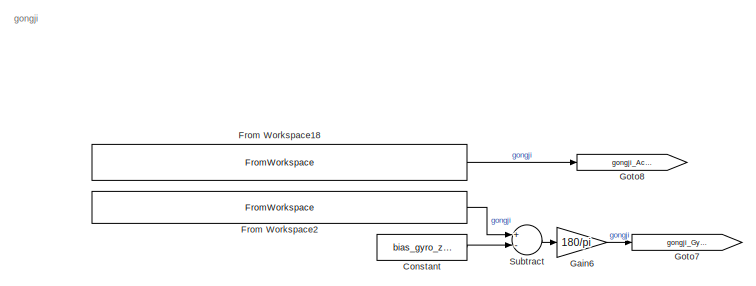
[diagram: root canvas - part 1/3, top right region]
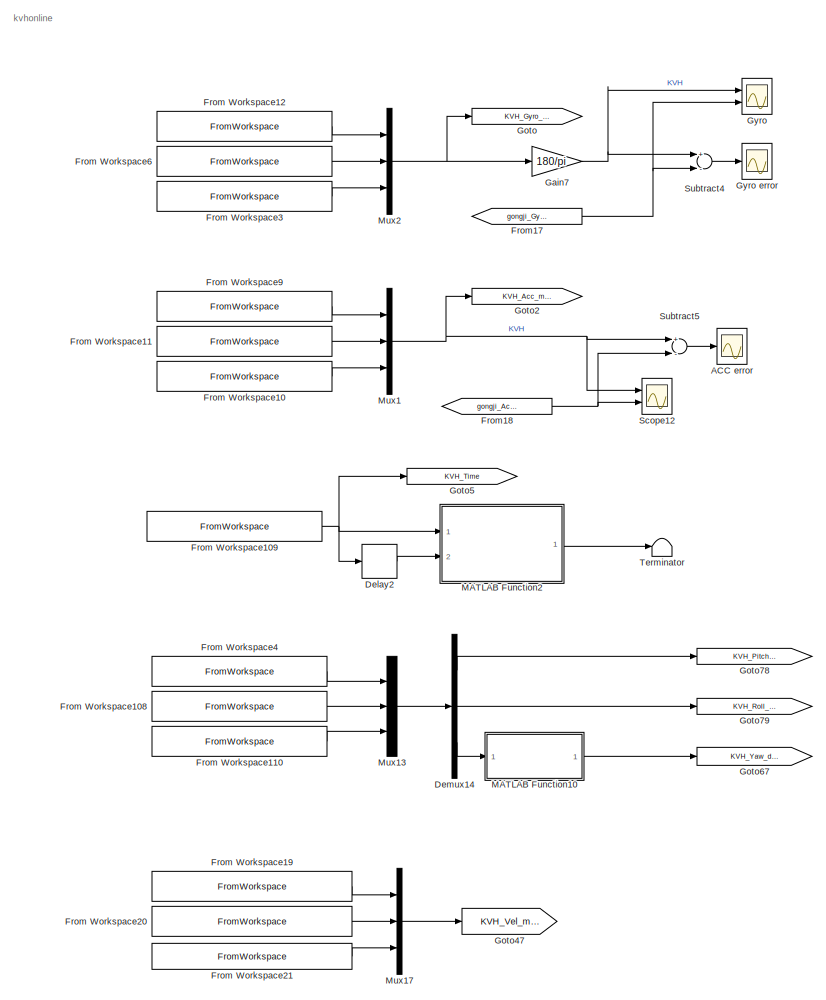
[diagram: root canvas - part 2/3, middle left region]
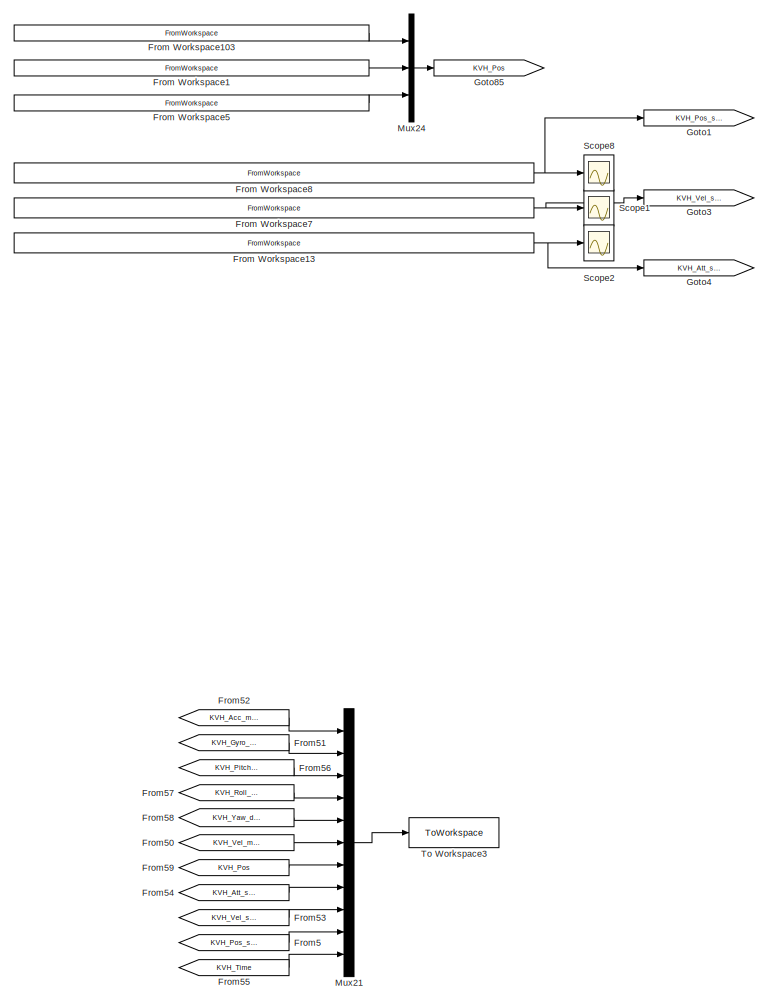
[diagram: root canvas - part 3/3, bottom left region]
MODEL slx_8881a39156ae
KIND model
CONFIG AbsTol = auto
CONFIG EnableMultiTasking = off
CONFIG FixedStep = 0.01
CONFIG MaxStep = 0.01
CONFIG MinStep = auto
CONFIG RelTol = 1e-3
CONFIG SampleTimeConstraint = Unconstrained
CONFIG Solver = ode3
CONFIG SolverName = ode3
CONFIG StartTime = 0.0
CONFIG StopTime = 6000
BLOCK [Scope] ACC error
  Floating = off
  NumInputPorts = 1
  Ports = [1]
  ScopeSpecificationString = Simulink.scopes.TimeScopeBlockCfg('CurrentConfiguration', extmgr.ConfigurationSet(extmgr.Configuration('Core','General UI',true),extmgr.Configuration('Core','Source UI',true),extmgr.Configuration('Sources','WiredSimulink',true,'DataLoggingVariableName','ScopeData2','DataLoggingSaveFormat','StructureWithTime','DataLoggingDecimation','1','DataLoggingDecimateData',true),extmgr.Configuration('Visuals'...<+1628ch>
BLOCK [Constant] Constant
  Value = bias_gyro_z_gongji
BLOCK [Delay] Delay2
  DelayLength = 1
  InitialCondition = 0
  InputPortMap = u0
  Ports = [1, 1]
BLOCK [Demux] Demux14
  DisplayOption = bar
  Outputs = 3
  Ports = [1, 3]
BLOCK [FromWorkspace] From Workspace1
  OutputAfterFinalValue = Holding final value
  VariableName = [T_INSPVAXA,KVH1750.INSPVA.Longitude_Fusion*deg2rad(1)]
  ZeroCross = on
BLOCK [FromWorkspace] From Workspace10
  Interpolate = off
  OutputAfterFinalValue = Holding final value
  VariableName = [T_RAWIMU,KVH1750.RAWIMU.Z_Acc]
  ZeroCross = on
BLOCK [FromWorkspace] From Workspace103
  OutputAfterFinalValue = Holding final value
  VariableName = [T_INSPVAXA,KVH1750.INSPVA.Latitude_Fusion*deg2rad(1)]
  ZeroCross = on
BLOCK [FromWorkspace] From Workspace108
  Interpolate = off
  OutputAfterFinalValue = Holding final value
  VariableName = [T_INSPVAXA,KVH1750.INSPVA.Roll]
  ZeroCross = on
BLOCK [FromWorkspace] From Workspace109
  Interpolate = off
  OutputAfterFinalValue = Holding final value
  VariableName = [T_INSPVAXA,T_INSPVAXA]
  ZeroCross = on
BLOCK [FromWorkspace] From Workspace11
  Interpolate = off
  OutputAfterFinalValue = Holding final value
  VariableName = [T_RAWIMU,KVH1750.RAWIMU.Y_Acc]
  ZeroCross = on
BLOCK [FromWorkspace] From Workspace110
  Interpolate = off
  OutputAfterFinalValue = Holding final value
  VariableName = [T_INSPVAXA,KVH1750.INSPVA.Azimuth]
  ZeroCross = on
BLOCK [FromWorkspace] From Workspace12
  Interpolate = off
  OutputAfterFinalValue = Holding final value
  VariableName = [T_RAWIMU,KVH1750.RAWIMU.X_Gyro]
  ZeroCross = on
BLOCK [FromWorkspace] From Workspace13
  Interpolate = off
  OutputAfterFinalValue = Holding final value
  VariableName = [T_INSPVAXA,KVH1750.INSPVA.Pitch_sigma_Fusion,KVH1750.INSPVA.Roll_sigma_Fusion,KVH1750.INSPVA.Azimuth_sigma_Fusion]
  ZeroCross = on
BLOCK [FromWorkspace] From Workspace18
  Interpolate = off
  OutputAfterFinalValue = Holding final value
  VariableName = [Time,RawData_table.IMU_ACC_x,RawData_table.IMU_ACC_y,RawData_table.IMU_ACC_z]
  ZeroCross = on
BLOCK [FromWorkspace] From Workspace19
  Interpolate = off
  OutputAfterFinalValue = Holding final value
  VariableName = [T_INSPVAXA,KVH1750.INSPVA.Vel_E_Fusion]
  ZeroCross = on
BLOCK [FromWorkspace] From Workspace2
  Interpolate = off
  OutputAfterFinalValue = Holding final value
  VariableName = [Time,RawData_table.IMU_Gyro_x,RawData_table.IMU_Gyro_y,RawData_table.IMU_Gyro_z]
  ZeroCross = on
BLOCK [FromWorkspace] From Workspace20
  Interpolate = off
  OutputAfterFinalValue = Holding final value
  VariableName = [T_INSPVAXA,KVH1750.INSPVA.Vel_N_Fusion]
  ZeroCross = on
BLOCK [FromWorkspace] From Workspace21
  Interpolate = off
  OutputAfterFinalValue = Holding final value
  VariableName = [T_INSPVAXA,KVH1750.INSPVA.Vel_U_Fusion]
  ZeroCross = on
BLOCK [FromWorkspace] From Workspace3
  Interpolate = off
  OutputAfterFinalValue = Holding final value
  VariableName = [T_RAWIMU,KVH1750.RAWIMU.Z_Gyro]
  ZeroCross = on
BLOCK [FromWorkspace] From Workspace4
  Interpolate = off
  OutputAfterFinalValue = Holding final value
  VariableName = [T_INSPVAXA,KVH1750.INSPVA.Pitch]
  ZeroCross = on
BLOCK [FromWorkspace] From Workspace5
  OutputAfterFinalValue = Holding final value
  VariableName = [T_INSPVAXA,KVH1750.INSPVA.Height_Fusion]
  ZeroCross = on
BLOCK [FromWorkspace] From Workspace6
  Interpolate = off
  OutputAfterFinalValue = Holding final value
  VariableName = [T_RAWIMU,KVH1750.RAWIMU.Y_Gyro]
  ZeroCross = on
BLOCK [FromWorkspace] From Workspace7
  Interpolate = off
  OutputAfterFinalValue = Holding final value
  VariableName = [T_INSPVAXA,KVH1750.INSPVA.Vel_E_sigma_Fusion,KVH1750.INSPVA.Vel_N_sigma_Fusion,KVH1750.INSPVA.Vel_U_sigma_Fusion]
  ZeroCross = on
BLOCK [FromWorkspace] From Workspace8
  Interpolate = off
  OutputAfterFinalValue = Holding final value
  VariableName = [T_INSPVAXA,KVH1750.INSPVA.Lat_sigma_Fusion,KVH1750.INSPVA.Long_sigma_Fusion,KVH1750.INSPVA.Height_sigma_Fusion]
  ZeroCross = on
BLOCK [FromWorkspace] From Workspace9
  Interpolate = off
  OutputAfterFinalValue = Holding final value
  VariableName = [T_RAWIMU,KVH1750.RAWIMU.X_Acc]
  ZeroCross = on
BLOCK [From] From17
  GotoTag = gongji_Gyro_degps
BLOCK [From] From18
  GotoTag = gongji_Acc_mpss
BLOCK [From] From5
  GotoTag = KVH_Pos_sigma
BLOCK [From] From50
  GotoTag = KVH_Vel_mps
BLOCK [From] From51
  GotoTag = KVH_Gyro_rdps
BLOCK [From] From52
  GotoTag = KVH_Acc_mpss
BLOCK [From] From53
  GotoTag = KVH_Vel_sigma
BLOCK [From] From54
  GotoTag = KVH_Att_sigma
BLOCK [From] From55
  GotoTag = KVH_Time
BLOCK [From] From56
  GotoTag = KVH_Pitch_deg
BLOCK [From] From57
  GotoTag = KVH_Roll_deg
BLOCK [From] From58
  GotoTag = KVH_Yaw_deg
BLOCK [From] From59
  GotoTag = KVH_Pos
BLOCK [Gain] Gain6
  Gain = 180/pi
  OutDataTypeStr = Inherit: Inherit via internal rule
  ParamDataTypeStr = Inherit: Inherit via internal rule
  SaturateOnIntegerOverflow = off
BLOCK [Gain] Gain7
  Gain = 180/pi
  OutDataTypeStr = Inherit: Inherit via internal rule
  ParamDataTypeStr = Inherit: Inherit via internal rule
  SaturateOnIntegerOverflow = off
BLOCK [Goto] Goto
  GotoTag = KVH_Gyro_rdps
BLOCK [Goto] Goto1
  GotoTag = KVH_Pos_sigma
BLOCK [Goto] Goto2
  GotoTag = KVH_Acc_mpss
BLOCK [Goto] Goto3
  GotoTag = KVH_Vel_sigma
BLOCK [Goto] Goto4
  GotoTag = KVH_Att_sigma
BLOCK [Goto] Goto47
  GotoTag = KVH_Vel_mps
BLOCK [Goto] Goto5
  GotoTag = KVH_Time
BLOCK [Goto] Goto67
  GotoTag = KVH_Yaw_deg
BLOCK [Goto] Goto7
  GotoTag = gongji_Gyro_degps
BLOCK [Goto] Goto78
  GotoTag = KVH_Pitch_deg
BLOCK [Goto] Goto79
  GotoTag = KVH_Roll_deg
BLOCK [Goto] Goto8
  GotoTag = gongji_Acc_mpss
BLOCK [Goto] Goto85
  GotoTag = KVH_Pos
BLOCK [Scope] Gyro 
  Floating = off
  NumInputPorts = 2
  Ports = [2]
  ScopeSpecificationString = Simulink.scopes.TimeScopeBlockCfg('CurrentConfiguration', extmgr.ConfigurationSet(extmgr.Configuration('Core','General UI',true),extmgr.Configuration('Core','Source UI',true),extmgr.Configuration('Sources','WiredSimulink',true,'DataLoggingVariableName','ScopeData4','DataLoggingSaveFormat','StructureWithTime','DataLoggingDecimation','1','DataLoggingDecimateData',true),extmgr.Configuration('Visuals'...<+1718ch>
BLOCK [Scope] Gyro error
  Floating = off
  NumInputPorts = 1
  Ports = [1]
  ScopeSpecificationString = Simulink.scopes.TimeScopeBlockCfg('CurrentConfiguration', extmgr.ConfigurationSet(extmgr.Configuration('Core','General UI',true),extmgr.Configuration('Core','Source UI',true),extmgr.Configuration('Sources','WiredSimulink',true,'DataLoggingVariableName','ScopeData1','DataLoggingSaveFormat','StructureWithTime','DataLoggingDecimation','1','DataLoggingDecimateData',true),extmgr.Configuration('Visuals'...<+1672ch>
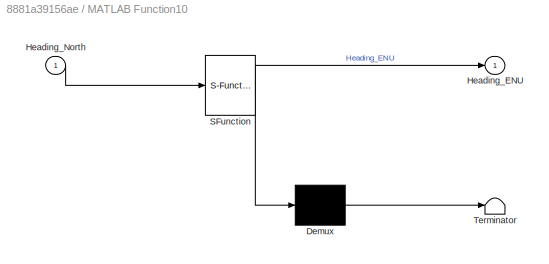
BLOCK [SubSystem] MATLAB Function10
  ErrorFcn = Stateflow.Translate.translate
  PermitHierarchicalResolution = ExplicitOnly
  Ports = [1, 1]
  RequestExecContextInheritance = off
  SFBlockType = MATLAB Function
  TreatAsAtomicUnit = on
BLOCK [Demux] MATLAB Function10/ Demux 
  Outputs = 1
  Ports = [1, 1]
BLOCK [S-Function] MATLAB Function10/ SFunction 
  EnableBusSupport = on
  FunctionName = sf_sfun
  PortCounts = [1 2]
  Ports = [1, 2]
  SFcnIsStateOwnerBlock = off
  SFunctionDeploymentMode = off
  Tag = Stateflow S-Function 124
BLOCK [Terminator] MATLAB Function10/ Terminator 
BLOCK [Outport] MATLAB Function10/Heading_ENU
  IconDisplay = Port number
BLOCK [Inport] MATLAB Function10/Heading_North
  IconDisplay = Port number
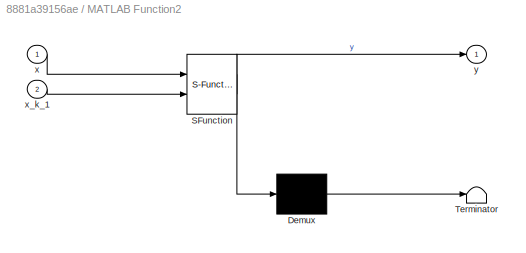
BLOCK [SubSystem] MATLAB Function2
  ErrorFcn = Stateflow.Translate.translate
  PermitHierarchicalResolution = ExplicitOnly
  Ports = [2, 1]
  RequestExecContextInheritance = off
  SFBlockType = MATLAB Function
  TreatAsAtomicUnit = on
BLOCK [Demux] MATLAB Function2/ Demux 
  Outputs = 1
  Ports = [1, 1]
BLOCK [S-Function] MATLAB Function2/ SFunction 
  EnableBusSupport = on
  FunctionName = sf_sfun
  PortCounts = [2 2]
  Ports = [2, 2]
  SFcnIsStateOwnerBlock = off
  SFunctionDeploymentMode = off
  Tag = Stateflow S-Function 57
BLOCK [Terminator] MATLAB Function2/ Terminator 
BLOCK [Inport] MATLAB Function2/x
  IconDisplay = Port number
BLOCK [Inport] MATLAB Function2/x_k_1
  IconDisplay = Port number
  Port = 2
BLOCK [Outport] MATLAB Function2/y
  IconDisplay = Port number
BLOCK [Mux] Mux1
  DisplayOption = bar
  Inputs = 3
  Ports = [3, 1]
BLOCK [Mux] Mux13
  DisplayOption = bar
  Inputs = 3
  Ports = [3, 1]
BLOCK [Mux] Mux17
  DisplayOption = bar
  Inputs = 3
  Ports = [3, 1]
BLOCK [Mux] Mux2
  DisplayOption = bar
  Inputs = 3
  Ports = [3, 1]
BLOCK [Mux] Mux21
  DisplayOption = bar
  Inputs = 11
  Ports = [11, 1]
BLOCK [Mux] Mux24
  DisplayOption = bar
  Inputs = 3
  Ports = [3, 1]
BLOCK [Scope] Scope1
  Floating = off
  NumInputPorts = 1
  Ports = [1]
  ScopeSpecificationString = Simulink.scopes.TimeScopeBlockCfg('CurrentConfiguration', extmgr.ConfigurationSet(extmgr.Configuration('Core','General UI',true),extmgr.Configuration('Core','Source UI',true),extmgr.Configuration('Sources','WiredSimulink',true,'DataLoggingVariableName','ScopeData1','DataLoggingSaveFormat','StructureWithTime','DataLoggingDecimation','1','DataLoggingDecimateData',true),extmgr.Configuration('Visuals'...<+1813ch>
BLOCK [Scope] Scope12
  Floating = off
  NumInputPorts = 2
  Ports = [2]
  ScopeSpecificationString = Simulink.scopes.TimeScopeBlockCfg('CurrentConfiguration', extmgr.ConfigurationSet(extmgr.Configuration('Core','General UI',true),extmgr.Configuration('Core','Source UI',true),extmgr.Configuration('Sources','WiredSimulink',true,'DataLoggingVariableName','ScopeData1','DataLoggingSaveFormat','StructureWithTime','DataLoggingDecimation','1','DataLoggingDecimateData',true),extmgr.Configuration('Visuals'...<+1753ch>
BLOCK [Scope] Scope2
  Floating = off
  NumInputPorts = 1
  Ports = [1]
  ScopeSpecificationString = Simulink.scopes.TimeScopeBlockCfg('CurrentConfiguration', extmgr.ConfigurationSet(extmgr.Configuration('Core','General UI',true),extmgr.Configuration('Core','Source UI',true),extmgr.Configuration('Sources','WiredSimulink',true,'DataLoggingVariableName','ScopeData2','DataLoggingSaveFormat','StructureWithTime','DataLoggingDecimation','1','DataLoggingDecimateData',true),extmgr.Configuration('Visuals'...<+1816ch>
BLOCK [Scope] Scope8
  Floating = off
  NumInputPorts = 1
  Ports = [1]
  ScopeSpecificationString = Simulink.scopes.TimeScopeBlockCfg('CurrentConfiguration', extmgr.ConfigurationSet(extmgr.Configuration('Core','General UI',true),extmgr.Configuration('Core','Source UI',true),extmgr.Configuration('Sources','WiredSimulink',true,'DataLoggingVariableName','ScopeData3','DataLoggingSaveFormat','StructureWithTime','DataLoggingDecimation','1','DataLoggingDecimateData',true),extmgr.Configuration('Visuals'...<+1813ch>
BLOCK [Sum] Subtract
  InputSameDT = off
  Inputs = +-
  OutDataTypeStr = Inherit: Inherit via internal rule
  Ports = [2, 1]
  SaturateOnIntegerOverflow = off
BLOCK [Sum] Subtract4
  InputSameDT = off
  Inputs = +-
  OutDataTypeStr = Inherit: Inherit via internal rule
  Ports = [2, 1]
  SaturateOnIntegerOverflow = off
BLOCK [Sum] Subtract5
  InputSameDT = off
  Inputs = +-
  OutDataTypeStr = Inherit: Inherit via internal rule
  Ports = [2, 1]
  SaturateOnIntegerOverflow = off
BLOCK [Terminator] Terminator
BLOCK [ToWorkspace] To Workspace3
  FixptAsFi = on
  MaxDataPoints = inf
  Ports = [1]
  SampleTime = -1
  SaveFormat = Structure With Time
  VariableName = KVH_gongji
ANNOTATION (root): gongji
ANNOTATION (root): kvhonline
LINE Constant:1 -> Subtract:2
LINE Delay2:1 -> MATLAB Function2:2
LINE Demux14:1 -> Goto78:1
LINE Demux14:2 -> Goto79:1
LINE Demux14:3 -> MATLAB Function10:1
LINE From Workspace103:1 -> Mux24:1
LINE From Workspace108:1 -> Mux13:2
NET From Workspace109:1 -> Delay2:1, Goto5:1, MATLAB Function2:1
LINE From Workspace10:1 -> Mux1:3
LINE From Workspace110:1 -> Mux13:3
LINE From Workspace11:1 -> Mux1:2
LINE From Workspace12:1 -> Mux2:1
NET From Workspace13:1 -> Goto4:1, Scope2:1
LINE From Workspace18:1 -> Goto8:1
LINE From Workspace19:1 -> Mux17:1
LINE From Workspace1:1 -> Mux24:2
LINE From Workspace20:1 -> Mux17:2
LINE From Workspace21:1 -> Mux17:3
LINE From Workspace2:1 -> Subtract:1
LINE From Workspace3:1 -> Mux2:3
LINE From Workspace4:1 -> Mux13:1
LINE From Workspace5:1 -> Mux24:3
LINE From Workspace6:1 -> Mux2:2
NET From Workspace7:1 -> Goto3:1, Scope1:1
NET From Workspace8:1 -> Goto1:1, Scope8:1
LINE From Workspace9:1 -> Mux1:1
NET From17:1 -> Gyro :2, Subtract4:2
NET From18:1 -> Scope12:2, Subtract5:2
LINE From50:1 -> Mux21:6
LINE From51:1 -> Mux21:2
LINE From52:1 -> Mux21:1
LINE From53:1 -> Mux21:9
LINE From54:1 -> Mux21:8
LINE From55:1 -> Mux21:11
LINE From56:1 -> Mux21:3
LINE From57:1 -> Mux21:4
LINE From58:1 -> Mux21:5
LINE From59:1 -> Mux21:7
LINE From5:1 -> Mux21:10
LINE Gain6:1 -> Goto7:1
NET Gain7:1 -> Gyro :1, Subtract4:1
LINE MATLAB Function10:1 -> Goto67:1
LINE MATLAB Function2:1 -> Terminator:1
LINE Mux13:1 -> Demux14:1
LINE Mux17:1 -> Goto47:1
NET Mux1:1 -> Goto2:1, Scope12:1, Subtract5:1
LINE Mux21:1 -> To Workspace3:1
LINE Mux24:1 -> Goto85:1
NET Mux2:1 -> Gain7:1, Goto:1
LINE Subtract4:1 -> Gyro error:1
LINE Subtract5:1 -> ACC error:1
LINE Subtract:1 -> Gain6:1
note: NET lines group one-source signal fan-out (src -> all destinations, sorted); 1:1 wires keep LINE
CHART MATLAB Function2 states=1 transitions=1
  STATE_LABEL 'eML_blk_kernel()'
  STATE_LABEL 'SCRIPT:\nfunction y  = fcn(x,x_k_1)\n    if x ~= x_k_1\n        y = uint8(1);\n    else\n        y = uint8(0);\n    end\nend'
CHART MATLAB Function10 states=1 transitions=1
  STATE_LABEL 'eML_blk_kernel()'
  STATE_LABEL 'SCRIPT:\nfunction Heading_ENU = fcn(Heading_North)\n% Heading_ENU:以北为零顺时针为正0-360°\n% Heading_North:以北为零逆时针为正-180-180°\n\n% Heading_North = Heading_North + 0.5 + 3.8;\nif Heading_North <= 180\n    Heading_ENU = 0 - Heading_North;\nelse\n    Heading_ENU = 360 - Heading_North;\nend'
